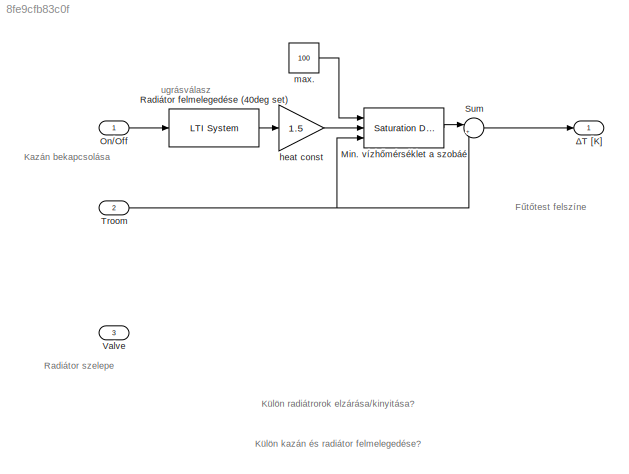
MODEL slx_8fe9cfb83c0f
KIND model
CONFIG AbsTol = auto
CONFIG EnableMultiTasking = off
CONFIG FixedStep = auto
CONFIG MaxStep = auto
CONFIG MinStep = auto
CONFIG RelTol = 1e-3
CONFIG SampleTimeConstraint = Unconstrained
CONFIG Solver = VariableStepAuto
CONFIG SolverName = VariableStepAuto
CONFIG StartTime = 0.0
CONFIG StopTime = 10.0
BLOCK [Reference] Min. vízhőmérséklet a szobáé  REF=simulink/Discontinuities/Saturation
Dynamic
  Ports = [3, 1]
  SourceBlock = simulink/Discontinuities/Saturation\nDynamic
  SourceType = Saturation Dynamic
BLOCK [Inport] On//Off
  IconDisplay = Port number
BLOCK [Reference] Radiátor felmelegedése (40deg set)  REF=cstblocks/LTI System
  Ports = [1, 1]
  SourceBlock = cstblocks/LTI System
  SourceType = LTI Block
BLOCK [Sum] Sum
  IconShape = round
  InputSameDT = off
  Inputs = |+-
  OutDataTypeStr = Inherit: Inherit via internal rule
  Ports = [2, 1]
  SaturateOnIntegerOverflow = off
BLOCK [Inport] Troom
  IconDisplay = Port number
  Port = 2
BLOCK [Inport] Valve
  IconDisplay = Port number
  Port = 3
BLOCK [Gain] heat const
  Gain = 1.5
  OutDataTypeStr = Inherit: Inherit via internal rule
  ParamDataTypeStr = Inherit: Inherit via internal rule
  SaturateOnIntegerOverflow = off
BLOCK [Constant] max.
  Value = 100
BLOCK [Outport] ΔT [K]
  IconDisplay = Port number
ANNOTATION (root): Fűtőtest felszíne
ANNOTATION (root): Kazán bekapcsolása
ANNOTATION (root): Külön kazán és radiátor felmelegedése?
ANNOTATION (root): Külön radiátrorok elzárása/kinyitása?
ANNOTATION (root): Radiátor szelepe
ANNOTATION (root): ugrásválasz
LINE Min. vízhőmérséklet a szobáé:1 -> Sum:1
LINE On//Off:1 -> Radiátor felmelegedése (40deg set):1
LINE Radiátor felmelegedése (40deg set):1 -> heat const:1
LINE Sum:1 -> ΔT [K]:1
NET Troom:1 -> Min. vízhőmérséklet a szobáé:3, Sum:2
LINE heat const:1 -> Min. vízhőmérséklet a szobáé:2
LINE max.:1 -> Min. vízhőmérséklet a szobáé:1
note: NET lines group one-source signal fan-out (src -> all destinations, sorted); 1:1 wires keep LINE
